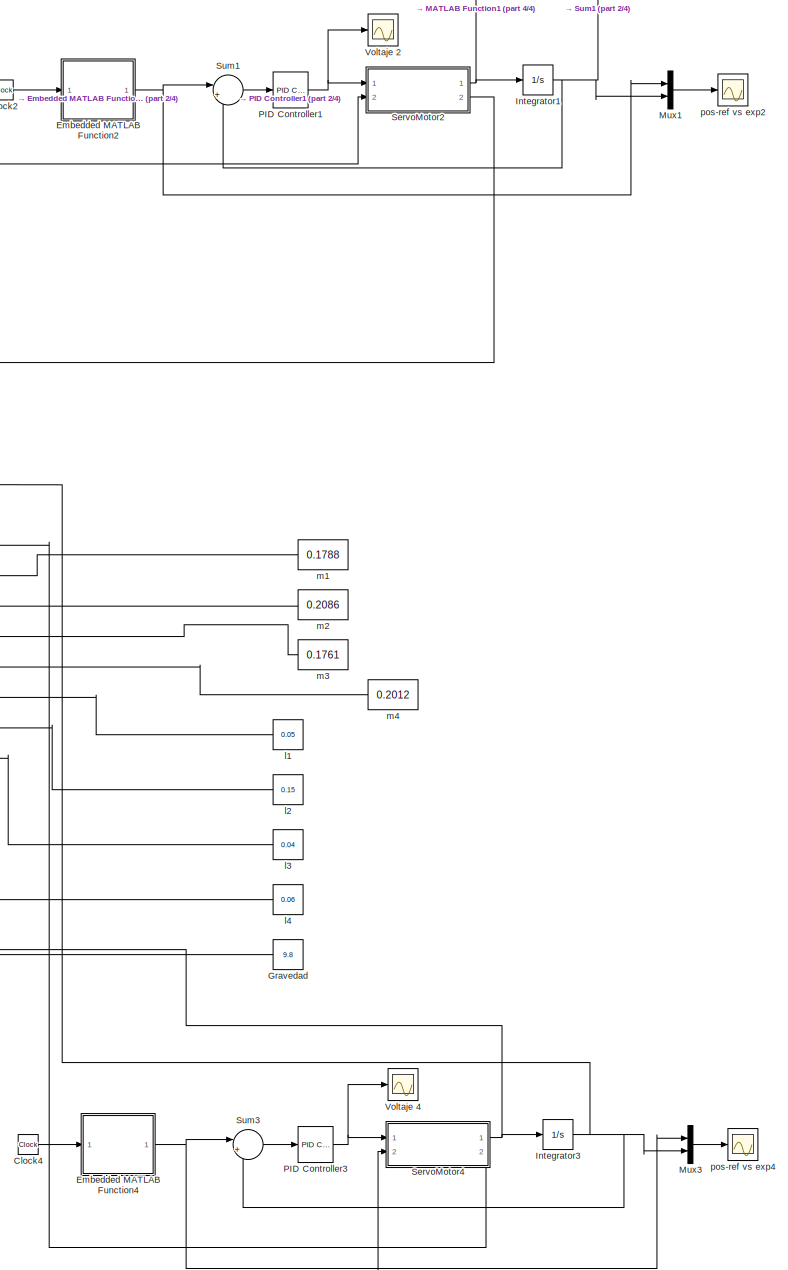
[diagram: root canvas - part 1/4, right side, full height]
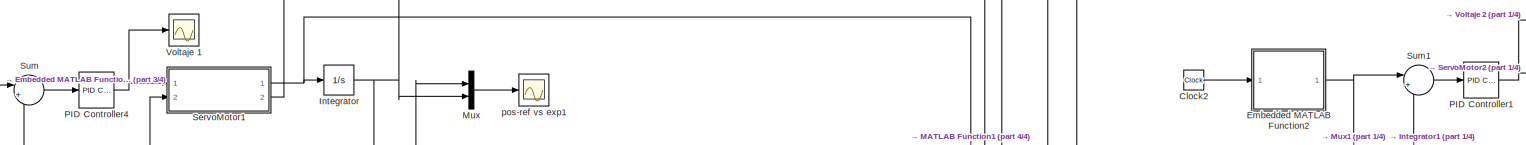
[diagram: root canvas - part 2/4, top center region]
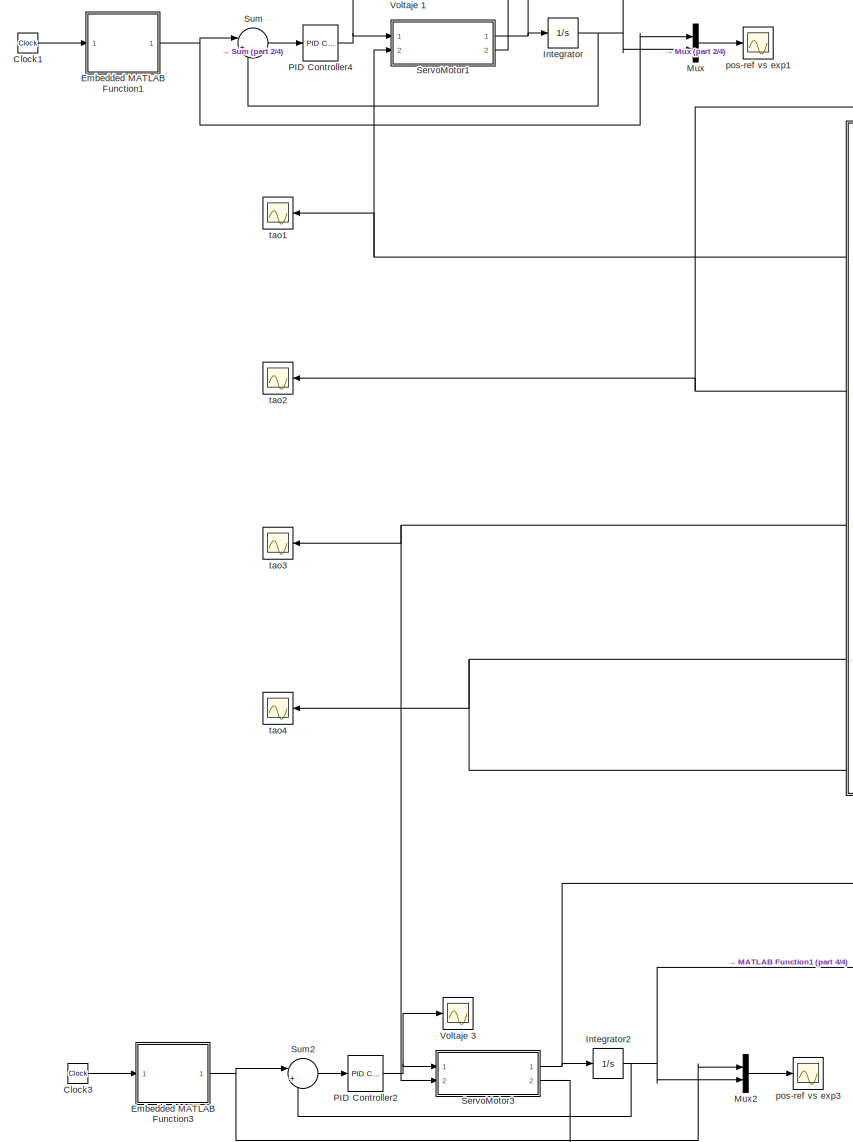
[diagram: root canvas - part 3/4, left side, full height]
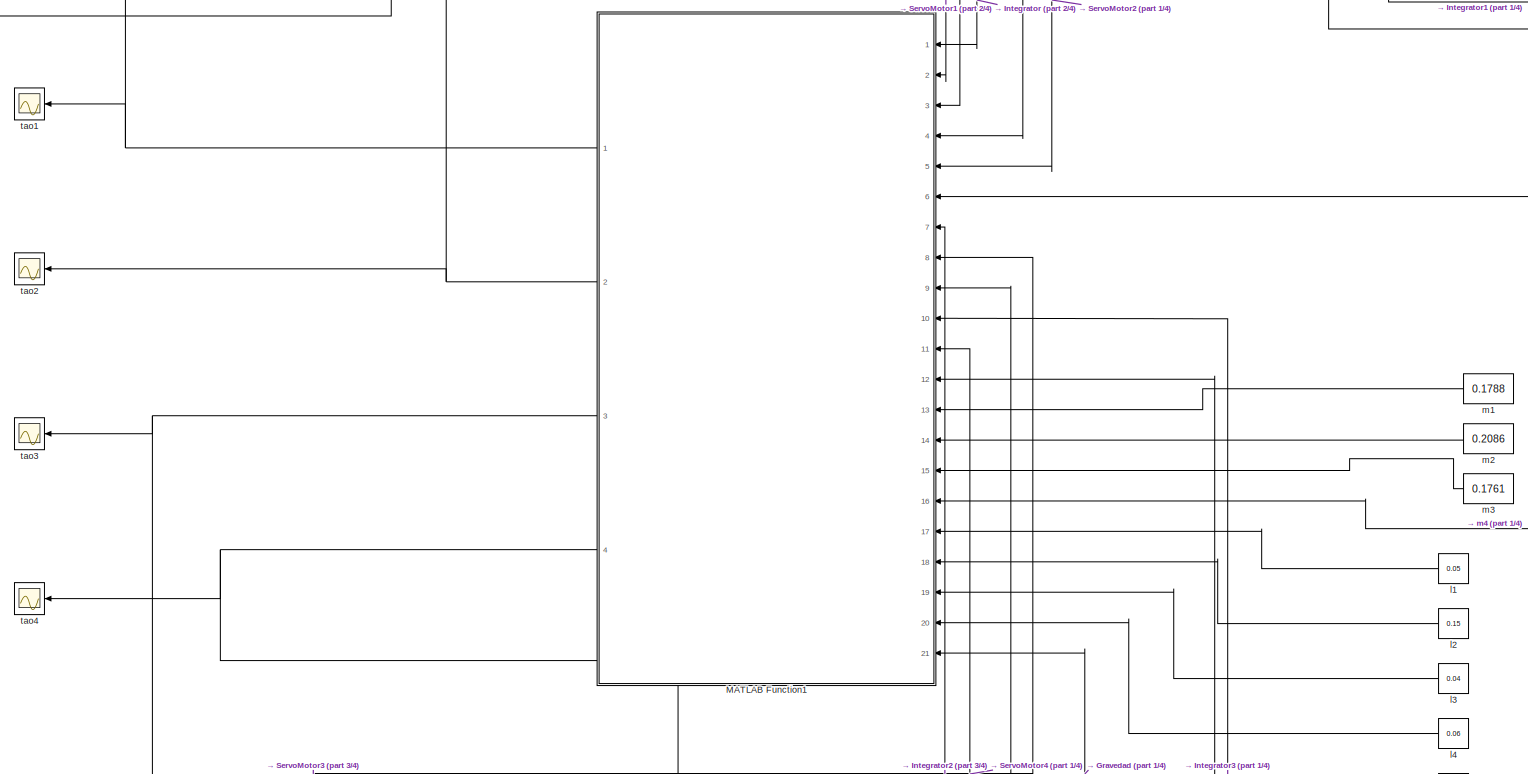
[diagram: root canvas - part 4/4, central region]
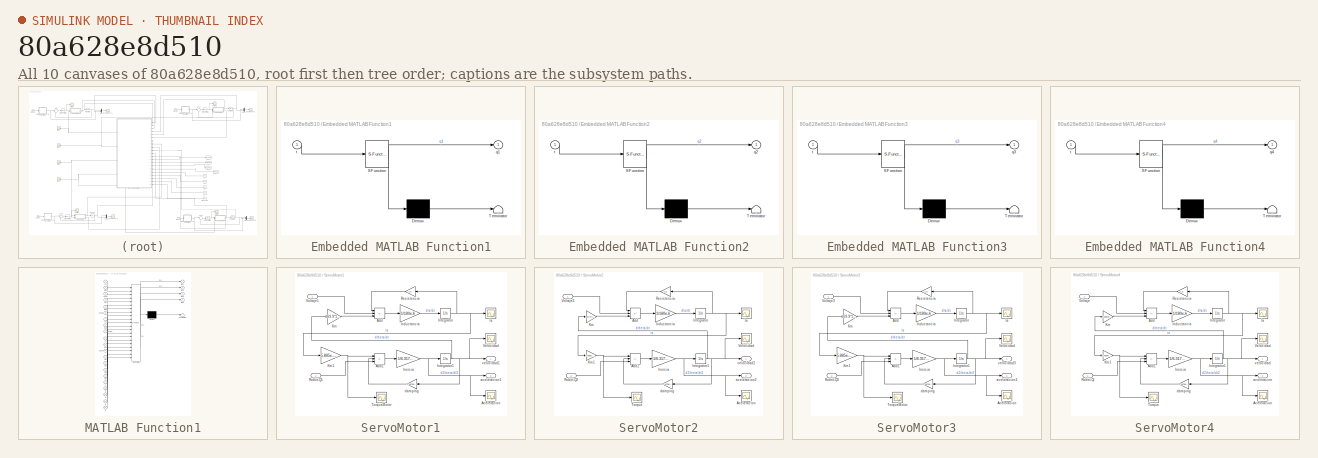
[diagram: thumbnail index - all 10 canvases of the model, root first then tree order]
MODEL slx_80a628e8d510
KIND model
CONFIG AbsTol = auto
CONFIG EnableMultiTasking = off
CONFIG FixedStep = auto
CONFIG MaxStep = auto
CONFIG MinStep = auto
CONFIG RelTol = 1e-3
CONFIG SampleTimeConstraint = Unconstrained
CONFIG SolverName = VariableStepAuto
CONFIG StartTime = 0.0
CONFIG StopTime = 5
BLOCK [Clock] Clock1
  Decimation = 1000
BLOCK [Clock] Clock2
  Decimation = 1000
BLOCK [Clock] Clock3
  Decimation = 1000
BLOCK [Clock] Clock4
  Decimation = 1000
BLOCK [SubSystem] Embedded MATLAB Function1
  ErrorFcn = Stateflow.Translate.translate
  PermitHierarchicalResolution = ExplicitOnly
  Ports = [1, 1]
  RequestExecContextInheritance = off
  SFBlockType = MATLAB Function
  TreatAsAtomicUnit = on
BLOCK [Demux] Embedded MATLAB Function1/ Demux 
  Outputs = 1
  Ports = [1, 1]
BLOCK [S-Function] Embedded MATLAB Function1/ SFunction 
  EnableBusSupport = on
  FunctionName = sf_sfun
  PortCounts = [1 2]
  Ports = [1, 2]
  SFcnIsStateOwnerBlock = off
  SFunctionDeploymentMode = off
  Tag = Stateflow S-Function 4
BLOCK [Terminator] Embedded MATLAB Function1/ Terminator 
BLOCK [Outport] Embedded MATLAB Function1/q1
  VectorParamsAs1DForOutWhenUnconnected = off
BLOCK [Inport] Embedded MATLAB Function1/t
BLOCK [SubSystem] Embedded MATLAB Function2
  ErrorFcn = Stateflow.Translate.translate
  PermitHierarchicalResolution = ExplicitOnly
  Ports = [1, 1]
  RequestExecContextInheritance = off
  SFBlockType = MATLAB Function
  TreatAsAtomicUnit = on
BLOCK [Demux] Embedded MATLAB Function2/ Demux 
  Outputs = 1
  Ports = [1, 1]
BLOCK [S-Function] Embedded MATLAB Function2/ SFunction 
  EnableBusSupport = on
  FunctionName = sf_sfun
  PortCounts = [1 2]
  Ports = [1, 2]
  SFcnIsStateOwnerBlock = off
  SFunctionDeploymentMode = off
  Tag = Stateflow S-Function 5
BLOCK [Terminator] Embedded MATLAB Function2/ Terminator 
BLOCK [Outport] Embedded MATLAB Function2/q2
  VectorParamsAs1DForOutWhenUnconnected = off
BLOCK [Inport] Embedded MATLAB Function2/t
BLOCK [SubSystem] Embedded MATLAB Function3
  ErrorFcn = Stateflow.Translate.translate
  PermitHierarchicalResolution = ExplicitOnly
  Ports = [1, 1]
  RequestExecContextInheritance = off
  SFBlockType = MATLAB Function
  TreatAsAtomicUnit = on
BLOCK [Demux] Embedded MATLAB Function3/ Demux 
  Outputs = 1
  Ports = [1, 1]
BLOCK [S-Function] Embedded MATLAB Function3/ SFunction 
  EnableBusSupport = on
  FunctionName = sf_sfun
  PortCounts = [1 2]
  Ports = [1, 2]
  SFcnIsStateOwnerBlock = off
  SFunctionDeploymentMode = off
  Tag = Stateflow S-Function 7
BLOCK [Terminator] Embedded MATLAB Function3/ Terminator 
BLOCK [Outport] Embedded MATLAB Function3/q3
  VectorParamsAs1DForOutWhenUnconnected = off
BLOCK [Inport] Embedded MATLAB Function3/t
BLOCK [SubSystem] Embedded MATLAB Function4
  ErrorFcn = Stateflow.Translate.translate
  PermitHierarchicalResolution = ExplicitOnly
  Ports = [1, 1]
  RequestExecContextInheritance = off
  SFBlockType = MATLAB Function
  TreatAsAtomicUnit = on
BLOCK [Demux] Embedded MATLAB Function4/ Demux 
  Outputs = 1
  Ports = [1, 1]
BLOCK [S-Function] Embedded MATLAB Function4/ SFunction 
  EnableBusSupport = on
  FunctionName = sf_sfun
  PortCounts = [1 2]
  Ports = [1, 2]
  SFcnIsStateOwnerBlock = off
  SFunctionDeploymentMode = off
  Tag = Stateflow S-Function 1
BLOCK [Terminator] Embedded MATLAB Function4/ Terminator 
BLOCK [Outport] Embedded MATLAB Function4/q4
  VectorParamsAs1DForOutWhenUnconnected = off
BLOCK [Inport] Embedded MATLAB Function4/t
BLOCK [Constant] Gravedad
  NameLocation = top
  Value = 9.8
BLOCK [Integrator] Integrator
  Ports = [1, 1]
BLOCK [Integrator] Integrator1
  Ports = [1, 1]
BLOCK [Integrator] Integrator2
  Ports = [1, 1]
BLOCK [Integrator] Integrator3
  Ports = [1, 1]
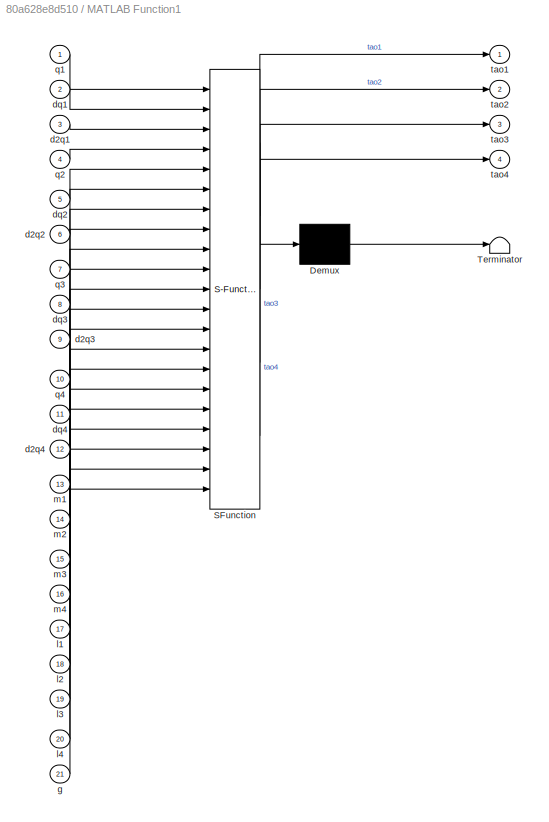
BLOCK [SubSystem] MATLAB Function1
  ErrorFcn = Stateflow.Translate.translate
  NameLocation = top
  PermitHierarchicalResolution = ExplicitOnly
  Ports = [21, 4]
  RequestExecContextInheritance = off
  SFBlockType = MATLAB Function
  TreatAsAtomicUnit = on
BLOCK [Demux] MATLAB Function1/ Demux 
  Outputs = 1
  Ports = [1, 1]
BLOCK [S-Function] MATLAB Function1/ SFunction 
  EnableBusSupport = on
  FunctionName = sf_sfun
  PortCounts = [21 5]
  Ports = [21, 5]
  SFcnIsStateOwnerBlock = off
  SFunctionDeploymentMode = off
  Tag = Stateflow S-Function 6
BLOCK [Terminator] MATLAB Function1/ Terminator 
BLOCK [Inport] MATLAB Function1/d2q1
  Port = 3
BLOCK [Inport] MATLAB Function1/d2q2
  Port = 6
BLOCK [Inport] MATLAB Function1/d2q3
  Port = 9
BLOCK [Inport] MATLAB Function1/d2q4
  Port = 12
BLOCK [Inport] MATLAB Function1/dq1
  Port = 2
BLOCK [Inport] MATLAB Function1/dq2
  Port = 5
BLOCK [Inport] MATLAB Function1/dq3
  Port = 8
BLOCK [Inport] MATLAB Function1/dq4
  Port = 11
BLOCK [Inport] MATLAB Function1/g
  Port = 21
BLOCK [Inport] MATLAB Function1/l1
  Port = 17
BLOCK [Inport] MATLAB Function1/l2
  Port = 18
BLOCK [Inport] MATLAB Function1/l3
  Port = 19
BLOCK [Inport] MATLAB Function1/l4
  Port = 20
BLOCK [Inport] MATLAB Function1/m1
  Port = 13
BLOCK [Inport] MATLAB Function1/m2
  Port = 14
BLOCK [Inport] MATLAB Function1/m3
  Port = 15
BLOCK [Inport] MATLAB Function1/m4
  Port = 16
BLOCK [Inport] MATLAB Function1/q1
BLOCK [Inport] MATLAB Function1/q2
  Port = 4
BLOCK [Inport] MATLAB Function1/q3
  Port = 7
BLOCK [Inport] MATLAB Function1/q4
  Port = 10
BLOCK [Outport] MATLAB Function1/tao1
BLOCK [Outport] MATLAB Function1/tao2
  Port = 2
BLOCK [Outport] MATLAB Function1/tao3
  Port = 3
BLOCK [Outport] MATLAB Function1/tao4
  Port = 4
BLOCK [Mux] Mux
  DisplayOption = bar
  Inputs = 2
  Ports = [2, 1]
BLOCK [Mux] Mux1
  DisplayOption = bar
  Inputs = 2
  Ports = [2, 1]
BLOCK [Mux] Mux2
  DisplayOption = bar
  Inputs = 2
  Ports = [2, 1]
BLOCK [Mux] Mux3
  DisplayOption = bar
  Inputs = 2
  Ports = [2, 1]
BLOCK [Reference] PID Controller1  REF=slpidlib/PID Controller
  Ports = [1, 1]
  SourceBlock = slpidlib/PID Controller
  SourceProductBaseCode = SL
  SourceType = PID 1dof
BLOCK [Reference] PID Controller2  REF=slpidlib/PID Controller
  Ports = [1, 1]
  SourceBlock = slpidlib/PID Controller
  SourceProductBaseCode = SL
  SourceType = PID 1dof
BLOCK [Reference] PID Controller3  REF=slpidlib/PID Controller
  Ports = [1, 1]
  SourceBlock = slpidlib/PID Controller
  SourceProductBaseCode = SL
  SourceType = PID 1dof
BLOCK [Reference] PID Controller4  REF=slpidlib/PID Controller
  Ports = [1, 1]
  SourceBlock = slpidlib/PID Controller
  SourceProductBaseCode = SL
  SourceType = PID 1dof
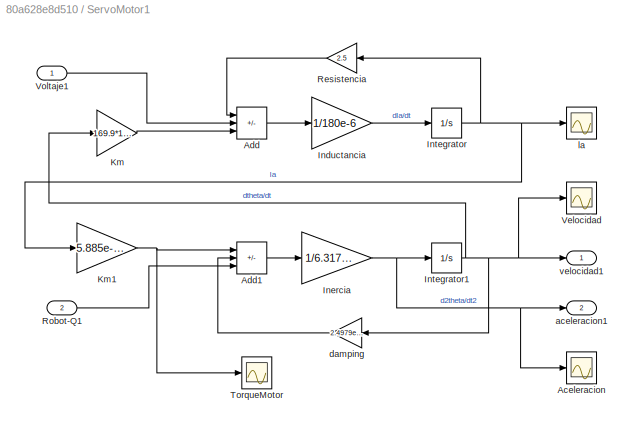
BLOCK [SubSystem] ServoMotor1
  Ports = [2, 2]
  RequestExecContextInheritance = off
BLOCK [Scope] ServoMotor1/Aceleracion
  Floating = off
  NumInputPorts = 1
  Ports = [1]
  ScopeSpecificationString = Simulink.scopes.TimeScopeBlockCfg('CurrentConfiguration', extmgr.ConfigurationSet(extmgr.Configuration('Core','General UI',true),extmgr.Configuration('Core','Source UI',true),extmgr.Configuration('Sources','WiredSimulink',true,'DataLoggingVariableName','ScopeData2'),extmgr.Configuration('Visuals','Time Domain',true,'SerializedDisplays',{struct('MinYLimReal','-808733.54803','MaxYLimReal','793738.99...<+1408ch>
BLOCK [Sum] ServoMotor1/Add
  IconShape = rectangular
  Inputs = -+-
  Ports = [3, 1]
BLOCK [Sum] ServoMotor1/Add1
  IconShape = rectangular
  Inputs = +--
  Ports = [3, 1]
BLOCK [Gain] ServoMotor1/Inductancia
  Gain = 1/180e-6
BLOCK [Gain] ServoMotor1/Inercia
  Gain = 1/6.3173e-7
BLOCK [Integrator] ServoMotor1/Integrator
  Ports = [1, 1]
BLOCK [Integrator] ServoMotor1/Integrator1
  Ports = [1, 1]
BLOCK [Gain] ServoMotor1/Km
  Gain = 169.9*1/275.75
BLOCK [Gain] ServoMotor1/Km1
  Gain = 5.885e-3*275.75
BLOCK [Gain] ServoMotor1/Resistencia
  Gain = 2.5
  NameLocation = top
BLOCK [Inport] ServoMotor1/Robot-Q1
  Port = 2
BLOCK [Scope] ServoMotor1/TorqueMotor
  Floating = off
  NumInputPorts = 1
  Ports = [1]
  ScopeSpecificationString = Simulink.scopes.TimeScopeBlockCfg('CurrentConfiguration', extmgr.ConfigurationSet(extmgr.Configuration('Core','General UI',true),extmgr.Configuration('Core','Source UI',true),extmgr.Configuration('Sources','WiredSimulink',true,'DataLoggingVariableName','ScopeData3'),extmgr.Configuration('Visuals','Time Domain',true,'SerializedDisplays',{struct('MinYLimReal','-4320.40867','MaxYLimReal','3987.98017'...<+1409ch>
BLOCK [Scope] ServoMotor1/Velocidad
  Floating = off
  NumInputPorts = 1
  Ports = [1]
  ScopeSpecificationString = Simulink.scopes.TimeScopeBlockCfg('CurrentConfiguration', extmgr.ConfigurationSet(extmgr.Configuration('Core','General UI',true),extmgr.Configuration('Core','Source UI',true),extmgr.Configuration('Sources','WiredSimulink',true,'DataLoggingVariableName','ScopeData1'),extmgr.Configuration('Visuals','Time Domain',true,'SerializedDisplays',{struct('MinYLimReal','-147.84307','MaxYLimReal','200.66035','...<+1382ch>
BLOCK [Inport] ServoMotor1/Voltaje1
BLOCK [Outport] ServoMotor1/aceleracion1
  Port = 2
BLOCK [Gain] ServoMotor1/damping
  Gain = 2.4979e-7
  NameLocation = top
BLOCK [Scope] ServoMotor1/la
  Floating = off
  NumInputPorts = 1
  Ports = [1]
  ScopeSpecificationString = Simulink.scopes.TimeScopeBlockCfg('CurrentConfiguration', extmgr.ConfigurationSet(extmgr.Configuration('Core','General UI',true),extmgr.Configuration('Core','Source UI',true),extmgr.Configuration('Sources','WiredSimulink',true),extmgr.Configuration('Visuals','Time Domain',true,'SerializedDisplays',{struct('MinYLimReal','-2662.33585','MaxYLimReal','2457.48571','YLabelReal','','MinYLimMag','  0.0000...<+1402ch>
BLOCK [Outport] ServoMotor1/velocidad1
BLOCK [SubSystem] ServoMotor2
  Ports = [2, 2]
  RequestExecContextInheritance = off
BLOCK [Scope] ServoMotor2/Aceleracion
  Floating = off
  NumInputPorts = 1
  Ports = [1]
  ScopeSpecificationString = Simulink.scopes.TimeScopeBlockCfg('CurrentConfiguration', extmgr.ConfigurationSet(extmgr.Configuration('Core','General UI',true),extmgr.Configuration('Core','Source UI',true),extmgr.Configuration('Sources','WiredSimulink',true,'DataLoggingVariableName','ScopeData2'),extmgr.Configuration('Visuals','Time Domain',true),extmgr.Configuration('Tools','Plot Navigation',true),extmgr.Configuration('Tools',...<+58ch>
BLOCK [Sum] ServoMotor2/Add
  IconShape = rectangular
  Inputs = -+-
  Ports = [3, 1]
BLOCK [Sum] ServoMotor2/Add1
  IconShape = rectangular
  Inputs = +--
  Ports = [3, 1]
BLOCK [Gain] ServoMotor2/Inductancia
  Gain = 1/180e-6
BLOCK [Gain] ServoMotor2/Inercia
  Gain = 1/6.3173e-7
BLOCK [Integrator] ServoMotor2/Integrator
  Ports = [1, 1]
BLOCK [Integrator] ServoMotor2/Integrator1
  Ports = [1, 1]
BLOCK [Gain] ServoMotor2/Km
  Gain = 169.9*1/275.75
BLOCK [Gain] ServoMotor2/Km1
  Gain = 5.885e-3*275.75
BLOCK [Gain] ServoMotor2/Resistencia
  Gain = 2.5
  NameLocation = top
BLOCK [Inport] ServoMotor2/Robot-Q2
  Port = 2
BLOCK [Scope] ServoMotor2/Torque
  Floating = off
  NumInputPorts = 1
  Ports = [1]
  ScopeSpecificationString = Simulink.scopes.TimeScopeBlockCfg('CurrentConfiguration', extmgr.ConfigurationSet(extmgr.Configuration('Core','General UI',true),extmgr.Configuration('Core','Source UI',true),extmgr.Configuration('Sources','WiredSimulink',true,'DataLoggingVariableName','ScopeData3'),extmgr.Configuration('Visuals','Time Domain',true),extmgr.Configuration('Tools','Plot Navigation',true),extmgr.Configuration('Tools',...<+58ch>
BLOCK [Scope] ServoMotor2/Velocidad
  Floating = off
  NumInputPorts = 1
  Ports = [1]
  ScopeSpecificationString = Simulink.scopes.TimeScopeBlockCfg('CurrentConfiguration', extmgr.ConfigurationSet(extmgr.Configuration('Core','General UI',true),extmgr.Configuration('Core','Source UI',true),extmgr.Configuration('Sources','WiredSimulink',true,'DataLoggingVariableName','ScopeData1'),extmgr.Configuration('Visuals','Time Domain',true),extmgr.Configuration('Tools','Plot Navigation',true),extmgr.Configuration('Tools',...<+58ch>
BLOCK [Inport] ServoMotor2/Voltaje2
BLOCK [Outport] ServoMotor2/aceleracion2
  Port = 2
BLOCK [Gain] ServoMotor2/damping
  Gain = 2.4979e-7
  NameLocation = top
BLOCK [Scope] ServoMotor2/la
  Floating = off
  NumInputPorts = 1
  Ports = [1]
  ScopeSpecificationString = Simulink.scopes.TimeScopeBlockCfg('CurrentConfiguration', extmgr.ConfigurationSet(extmgr.Configuration('Core','General UI',true),extmgr.Configuration('Core','Source UI',true),extmgr.Configuration('Sources','WiredSimulink',true),extmgr.Configuration('Visuals','Time Domain',true),extmgr.Configuration('Tools','Plot Navigation',true),extmgr.Configuration('Tools','Measurements',true,'Version','2021b'))...<+19ch>
BLOCK [Outport] ServoMotor2/velocidad2
BLOCK [SubSystem] ServoMotor3
  Ports = [2, 2]
  RequestExecContextInheritance = off
BLOCK [Scope] ServoMotor3/Aceleracion
  Floating = off
  NumInputPorts = 1
  Ports = [1]
  ScopeSpecificationString = Simulink.scopes.TimeScopeBlockCfg('CurrentConfiguration', extmgr.ConfigurationSet(extmgr.Configuration('Core','General UI',true),extmgr.Configuration('Core','Source UI',true),extmgr.Configuration('Sources','WiredSimulink',true,'DataLoggingVariableName','ScopeData2'),extmgr.Configuration('Visuals','Time Domain',true,'SerializedDisplays',{struct('MinYLimReal','-280347029.40672','MaxYLimReal','363268...<+1432ch>
BLOCK [Sum] ServoMotor3/Add
  IconShape = rectangular
  Inputs = -+-
  Ports = [3, 1]
BLOCK [Sum] ServoMotor3/Add1
  IconShape = rectangular
  Inputs = +--
  Ports = [3, 1]
BLOCK [Gain] ServoMotor3/Inductancia
  Gain = 1/180e-6
BLOCK [Gain] ServoMotor3/Inercia
  Gain = 1/6.3173e-7
BLOCK [Integrator] ServoMotor3/Integrator
  Ports = [1, 1]
BLOCK [Integrator] ServoMotor3/Integrator1
  Ports = [1, 1]
BLOCK [Gain] ServoMotor3/Km
  Gain = 169.9*1/275.75
BLOCK [Gain] ServoMotor3/Km1
  Gain = 5.885e-3*275.75
BLOCK [Gain] ServoMotor3/Resistencia
  Gain = 2.5
  NameLocation = top
BLOCK [Inport] ServoMotor3/Robot-Q3
  Port = 2
BLOCK [Scope] ServoMotor3/TorqueMotor
  Floating = off
  NumInputPorts = 1
  Ports = [1]
  ScopeSpecificationString = Simulink.scopes.TimeScopeBlockCfg('CurrentConfiguration', extmgr.ConfigurationSet(extmgr.Configuration('Core','General UI',true),extmgr.Configuration('Core','Source UI',true),extmgr.Configuration('Sources','WiredSimulink',true,'DataLoggingVariableName','ScopeData3'),extmgr.Configuration('Visuals','Time Domain',true,'SerializedDisplays',{struct('MinYLimReal','-34854.86099','MaxYLimReal','70354.6655...<+1417ch>
BLOCK [Scope] ServoMotor3/Velocidad
  Floating = off
  NumInputPorts = 1
  Ports = [1]
  ScopeSpecificationString = Simulink.scopes.TimeScopeBlockCfg('CurrentConfiguration', extmgr.ConfigurationSet(extmgr.Configuration('Core','General UI',true),extmgr.Configuration('Core','Source UI',true),extmgr.Configuration('Sources','WiredSimulink',true,'DataLoggingVariableName','ScopeData1'),extmgr.Configuration('Visuals','Time Domain',true,'SerializedDisplays',{struct('MinYLimReal','-8320.52522','MaxYLimReal','6938.8941',...<+1388ch>
BLOCK [Inport] ServoMotor3/Voltaje3
BLOCK [Outport] ServoMotor3/aceleracion3
  Port = 2
BLOCK [Gain] ServoMotor3/damping
  Gain = 2.4979e-7
  NameLocation = top
BLOCK [Scope] ServoMotor3/la
  Floating = off
  NumInputPorts = 1
  Ports = [1]
  ScopeSpecificationString = Simulink.scopes.TimeScopeBlockCfg('CurrentConfiguration', extmgr.ConfigurationSet(extmgr.Configuration('Core','General UI',true),extmgr.Configuration('Core','Source UI',true),extmgr.Configuration('Sources','WiredSimulink',true),extmgr.Configuration('Visuals','Time Domain',true,'SerializedDisplays',{struct('MinYLimReal','-21478.37233','MaxYLimReal','43354.17381','YLabelReal','','MinYLimMag','   0.0...<+1410ch>
BLOCK [Outport] ServoMotor3/velocidad3
BLOCK [SubSystem] ServoMotor4
  Ports = [2, 2]
  RequestExecContextInheritance = off
BLOCK [Scope] ServoMotor4/Aceleracion
  Floating = off
  NumInputPorts = 1
  Ports = [1]
  ScopeSpecificationString = Simulink.scopes.TimeScopeBlockCfg('CurrentConfiguration', extmgr.ConfigurationSet(extmgr.Configuration('Core','General UI',true),extmgr.Configuration('Core','Source UI',true),extmgr.Configuration('Sources','WiredSimulink',true,'DataLoggingVariableName','ScopeData9'),extmgr.Configuration('Visuals','Time Domain',true),extmgr.Configuration('Tools','Plot Navigation',true),extmgr.Configuration('Tools',...<+58ch>
BLOCK [Sum] ServoMotor4/Add
  IconShape = rectangular
  Inputs = -+-
  Ports = [3, 1]
BLOCK [Sum] ServoMotor4/Add1
  IconShape = rectangular
  Inputs = +--
  Ports = [3, 1]
BLOCK [Gain] ServoMotor4/Inductancia
  Gain = 1/180e-6
BLOCK [Gain] ServoMotor4/Inercia
  Gain = 1/6.3173e-7
BLOCK [Integrator] ServoMotor4/Integrator
  Ports = [1, 1]
BLOCK [Integrator] ServoMotor4/Integrator1
  Ports = [1, 1]
BLOCK [Gain] ServoMotor4/Km
  Gain = 5.8857e-3
BLOCK [Gain] ServoMotor4/Km1
  Gain = 5.885e-3*275.75
BLOCK [Gain] ServoMotor4/Resistencia
  Gain = 2.5
  NameLocation = top
BLOCK [Inport] ServoMotor4/Robot-Qi
  Port = 2
BLOCK [Scope] ServoMotor4/Torque
  Floating = off
  NumInputPorts = 1
  Ports = [1]
  ScopeSpecificationString = Simulink.scopes.TimeScopeBlockCfg('CurrentConfiguration', extmgr.ConfigurationSet(extmgr.Configuration('Core','General UI',true),extmgr.Configuration('Core','Source UI',true),extmgr.Configuration('Sources','WiredSimulink',true,'DataLoggingVariableName','ScopeData10'),extmgr.Configuration('Visuals','Time Domain',true),extmgr.Configuration('Tools','Plot Navigation',true),extmgr.Configuration('Tools'...<+59ch>
BLOCK [Scope] ServoMotor4/Velocidad
  Floating = off
  NumInputPorts = 1
  Ports = [1]
  ScopeSpecificationString = Simulink.scopes.TimeScopeBlockCfg('CurrentConfiguration', extmgr.ConfigurationSet(extmgr.Configuration('Core','General UI',true),extmgr.Configuration('Core','Source UI',true),extmgr.Configuration('Sources','WiredSimulink',true,'DataLoggingVariableName','ScopeData11'),extmgr.Configuration('Visuals','Time Domain',true),extmgr.Configuration('Tools','Plot Navigation',true),extmgr.Configuration('Tools'...<+59ch>
BLOCK [Inport] ServoMotor4/Voltaje
BLOCK [Outport] ServoMotor4/aceleracion
  Port = 2
BLOCK [Gain] ServoMotor4/damping
  Gain = 2.4979e-7
  NameLocation = top
BLOCK [Scope] ServoMotor4/la
  Floating = off
  NumInputPorts = 1
  Ports = [1]
  ScopeSpecificationString = Simulink.scopes.TimeScopeBlockCfg('CurrentConfiguration', extmgr.ConfigurationSet(extmgr.Configuration('Core','General UI',true),extmgr.Configuration('Core','Source UI',true),extmgr.Configuration('Sources','WiredSimulink',true,'DataLoggingVariableName','ScopeData12'),extmgr.Configuration('Visuals','Time Domain',true),extmgr.Configuration('Tools','Plot Navigation',true),extmgr.Configuration('Tools'...<+59ch>
BLOCK [Outport] ServoMotor4/velocidad
BLOCK [Sum] Sum
  Inputs = |+-
  Ports = [2, 1]
BLOCK [Sum] Sum1
  Inputs = |+-
  Ports = [2, 1]
BLOCK [Sum] Sum2
  Inputs = |+-
  Ports = [2, 1]
BLOCK [Sum] Sum3
  Inputs = |+-
  Ports = [2, 1]
BLOCK [Scope] Voltaje 1
  Floating = off
  NumInputPorts = 1
  Ports = [1]
  ScopeSpecificationString = Simulink.scopes.TimeScopeBlockCfg('CurrentConfiguration', extmgr.ConfigurationSet(extmgr.Configuration('Core','General UI',true),extmgr.Configuration('Core','Source UI',true),extmgr.Configuration('Sources','WiredSimulink',true,'DataLoggingVariableName','ScopeData5'),extmgr.Configuration('Visuals','Time Domain',true,'SerializedDisplays',{struct('MinYLimReal','-6745.82177','MaxYLimReal','6167.35058'...<+1421ch>
BLOCK [Scope] Voltaje 2
  Floating = off
  NumInputPorts = 1
  Ports = [1]
  ScopeSpecificationString = Simulink.scopes.TimeScopeBlockCfg('CurrentConfiguration', extmgr.ConfigurationSet(extmgr.Configuration('Core','General UI',true),extmgr.Configuration('Core','Source UI',true),extmgr.Configuration('Sources','WiredSimulink',true,'DataLoggingVariableName','ScopeData7'),extmgr.Configuration('Visuals','Time Domain',true,'SerializedDisplays',{struct('MinYLimReal','-11.90952','MaxYLimReal','2.75582','YLa...<+1403ch>
BLOCK [Scope] Voltaje 3
  Floating = off
  NumInputPorts = 1
  Ports = [1]
  ScopeSpecificationString = Simulink.scopes.TimeScopeBlockCfg('CurrentConfiguration', extmgr.ConfigurationSet(extmgr.Configuration('Core','General UI',true),extmgr.Configuration('Core','Source UI',true),extmgr.Configuration('Sources','WiredSimulink',true,'DataLoggingVariableName','ScopeData10'),extmgr.Configuration('Visuals','Time Domain',true,'SerializedDisplays',{struct('MinYLimReal','-2.56339','MaxYLimReal','3.56506','YLa...<+1400ch>
BLOCK [Scope] Voltaje 4
  Floating = off
  NumInputPorts = 1
  Ports = [1]
  ScopeSpecificationString = Simulink.scopes.TimeScopeBlockCfg('CurrentConfiguration', extmgr.ConfigurationSet(extmgr.Configuration('Core','General UI',true),extmgr.Configuration('Core','Source UI',true),extmgr.Configuration('Sources','WiredSimulink',true,'DataLoggingVariableName','ScopeData13'),extmgr.Configuration('Visuals','Time Domain',true,'SerializedDisplays',{struct('MinYLimReal','-1133.5741','MaxYLimReal','10204.96148...<+1424ch>
BLOCK [Constant] l1
  NameLocation = top
  Value = 0.05
BLOCK [Constant] l2
  NameLocation = top
  Value = 0.15
BLOCK [Constant] l3
  NameLocation = top
  Value = 0.04
BLOCK [Constant] l4
  NameLocation = top
  Value = 0.06
BLOCK [Constant] m1
  NameLocation = top
  Value = 0.1788
BLOCK [Constant] m2
  NameLocation = top
  Value = 0.2086
BLOCK [Constant] m3
  NameLocation = top
  Value = 0.1761
BLOCK [Constant] m4
  NameLocation = top
  Value = 0.2012
BLOCK [Scope] pos-ref vs exp1
  Floating = off
  NumInputPorts = 1
  Ports = [1]
  ScopeSpecificationString = Simulink.scopes.TimeScopeBlockCfg('CurrentConfiguration', extmgr.ConfigurationSet(extmgr.Configuration('Core','General UI',true,'FigureColor',[1 1 1]),extmgr.Configuration('Core','Source UI',true),extmgr.Configuration('Sources','WiredSimulink',true,'DataLoggingVariableName','ScopeData4'),extmgr.Configuration('Visuals','Time Domain',true,'SerializedDisplays',{struct('MinYLimReal','-3.53963','MaxYLi...<+1706ch>
BLOCK [Scope] pos-ref vs exp2
  Floating = off
  NumInputPorts = 1
  Ports = [1]
  ScopeSpecificationString = Simulink.scopes.TimeScopeBlockCfg('CurrentConfiguration', extmgr.ConfigurationSet(extmgr.Configuration('Core','General UI',true,'FigureColor',[1 1 1]),extmgr.Configuration('Core','Source UI',true),extmgr.Configuration('Sources','WiredSimulink',true,'DataLoggingVariableName','ScopeData4'),extmgr.Configuration('Visuals','Time Domain',true,'SerializedDisplays',{struct('MinYLimReal','-1.88083','MaxYLi...<+1706ch>
BLOCK [Scope] pos-ref vs exp3
  Floating = off
  NumInputPorts = 1
  Ports = [1]
  ScopeSpecificationString = Simulink.scopes.TimeScopeBlockCfg('CurrentConfiguration', extmgr.ConfigurationSet(extmgr.Configuration('Core','General UI',true,'FigureColor',[1 1 1]),extmgr.Configuration('Core','Source UI',true),extmgr.Configuration('Sources','WiredSimulink',true,'DataLoggingVariableName','ScopeData6'),extmgr.Configuration('Visuals','Time Domain',true,'SerializedDisplays',{struct('MinYLimReal','-1.09954','MaxYLi...<+1706ch>
BLOCK [Scope] pos-ref vs exp4
  Floating = off
  NumInputPorts = 1
  Ports = [1]
  ScopeSpecificationString = Simulink.scopes.TimeScopeBlockCfg('CurrentConfiguration', extmgr.ConfigurationSet(extmgr.Configuration('Core','General UI',true,'FigureColor',[1 1 1]),extmgr.Configuration('Core','Source UI',true),extmgr.Configuration('Sources','WiredSimulink',true,'DataLoggingVariableName','ScopeData7'),extmgr.Configuration('Visuals','Time Domain',true,'SerializedDisplays',{struct('MinYLimReal','-1.32961','MaxYLi...<+1706ch>
BLOCK [Scope] tao1
  Floating = off
  NameLocation = top
  NumInputPorts = 1
  Ports = [1]
  ScopeSpecificationString = Simulink.scopes.TimeScopeBlockCfg('CurrentConfiguration', extmgr.ConfigurationSet(extmgr.Configuration('Core','General UI',true,'FigureColor',[1 1 1]),extmgr.Configuration('Core','Source UI',true),extmgr.Configuration('Sources','WiredSimulink',true,'DataLoggingSaveFormat','StructureWithTime','DataLoggingLimitDataPoints',true,'DataLoggingDecimation','1','DataLoggingDecimateData',true,'DataLoggingVa...<+1913ch>  <repeated x4 — deduplicated; at blocks: tao1, tao2, tao3, tao4>
BLOCK [Scope] tao2
  Floating = off
  NameLocation = top
  NumInputPorts = 1
  Ports = [1]
BLOCK [Scope] tao3
  Floating = off
  NameLocation = top
  NumInputPorts = 1
  Ports = [1]
BLOCK [Scope] tao4
  Floating = off
  NameLocation = top
  NumInputPorts = 1
  Ports = [1]
LINE Clock1:1 -> Embedded MATLAB Function1:1
LINE Clock2:1 -> Embedded MATLAB Function2:1
LINE Clock3:1 -> Embedded MATLAB Function3:1
LINE Clock4:1 -> Embedded MATLAB Function4:1
NET Embedded MATLAB Function1:1 -> Mux:1, Sum:1
NET Embedded MATLAB Function2:1 -> Mux1:1, Sum1:1
NET Embedded MATLAB Function3:1 -> Mux2:1, Sum2:1
NET Embedded MATLAB Function4:1 -> Mux3:1, Sum3:1
LINE Gravedad:1 -> MATLAB Function1:21
NET Integrator1:1 -> MATLAB Function1:4, Mux1:2, Sum1:2
NET Integrator2:1 -> MATLAB Function1:7, Mux2:2, Sum2:2
NET Integrator3:1 -> MATLAB Function1:10, Mux3:2, Sum3:2
NET Integrator:1 -> MATLAB Function1:1, Mux:2, Sum:2
NET MATLAB Function1:1 -> ServoMotor1:2, tao1:1
NET MATLAB Function1:2 -> ServoMotor2:2, tao2:1
NET MATLAB Function1:3 -> ServoMotor3:2, tao3:1
NET MATLAB Function1:4 -> ServoMotor4:2, tao4:1
LINE Mux1:1 -> pos-ref vs exp2:1
LINE Mux2:1 -> pos-ref vs exp3:1
LINE Mux3:1 -> pos-ref vs exp4:1
LINE Mux:1 -> pos-ref vs exp1:1
NET PID Controller1:1 -> ServoMotor2:1, Voltaje 2:1
NET PID Controller2:1 -> ServoMotor3:1, Voltaje 3:1
NET PID Controller3:1 -> ServoMotor4:1, Voltaje 4:1
NET PID Controller4:1 -> ServoMotor1:1, Voltaje 1:1
LINE ServoMotor1/Add1:1 -> ServoMotor1/Inercia:1
LINE ServoMotor1/Add:1 -> ServoMotor1/Inductancia:1
LINE ServoMotor1/Inductancia:1 -> ServoMotor1/Integrator:1
NET ServoMotor1/Inercia:1 -> ServoMotor1/Aceleracion:1, ServoMotor1/Integrator1:1, ServoMotor1/aceleracion1:1
NET ServoMotor1/Integrator1:1 -> ServoMotor1/Km:1, ServoMotor1/Velocidad:1, ServoMotor1/damping:1, ServoMotor1/velocidad1:1
NET ServoMotor1/Integrator:1 -> ServoMotor1/Km1:1, ServoMotor1/Resistencia:1, ServoMotor1/la:1
NET ServoMotor1/Km1:1 -> ServoMotor1/Add1:1, ServoMotor1/TorqueMotor:1
LINE ServoMotor1/Km:1 -> ServoMotor1/Add:3
LINE ServoMotor1/Resistencia:1 -> ServoMotor1/Add:1
LINE ServoMotor1/Robot-Q1:1 -> ServoMotor1/Add1:3
LINE ServoMotor1/Voltaje1:1 -> ServoMotor1/Add:2
LINE ServoMotor1/damping:1 -> ServoMotor1/Add1:2
NET ServoMotor1:1 -> Integrator:1, MATLAB Function1:2
LINE ServoMotor1:2 -> MATLAB Function1:3
LINE ServoMotor2/Add1:1 -> ServoMotor2/Inercia:1
LINE ServoMotor2/Add:1 -> ServoMotor2/Inductancia:1
LINE ServoMotor2/Inductancia:1 -> ServoMotor2/Integrator:1
NET ServoMotor2/Inercia:1 -> ServoMotor2/Aceleracion:1, ServoMotor2/Integrator1:1, ServoMotor2/aceleracion2:1
NET ServoMotor2/Integrator1:1 -> ServoMotor2/Km:1, ServoMotor2/Velocidad:1, ServoMotor2/damping:1, ServoMotor2/velocidad2:1
NET ServoMotor2/Integrator:1 -> ServoMotor2/Km1:1, ServoMotor2/Resistencia:1, ServoMotor2/la:1
NET ServoMotor2/Km1:1 -> ServoMotor2/Add1:1, ServoMotor2/Torque:1
LINE ServoMotor2/Km:1 -> ServoMotor2/Add:3
LINE ServoMotor2/Resistencia:1 -> ServoMotor2/Add:1
LINE ServoMotor2/Robot-Q2:1 -> ServoMotor2/Add1:3
LINE ServoMotor2/Voltaje2:1 -> ServoMotor2/Add:2
LINE ServoMotor2/damping:1 -> ServoMotor2/Add1:2
NET ServoMotor2:1 -> Integrator1:1, MATLAB Function1:5
LINE ServoMotor2:2 -> MATLAB Function1:6
LINE ServoMotor3/Add1:1 -> ServoMotor3/Inercia:1
LINE ServoMotor3/Add:1 -> ServoMotor3/Inductancia:1
LINE ServoMotor3/Inductancia:1 -> ServoMotor3/Integrator:1
NET ServoMotor3/Inercia:1 -> ServoMotor3/Aceleracion:1, ServoMotor3/Integrator1:1, ServoMotor3/aceleracion3:1
NET ServoMotor3/Integrator1:1 -> ServoMotor3/Km:1, ServoMotor3/Velocidad:1, ServoMotor3/damping:1, ServoMotor3/velocidad3:1
NET ServoMotor3/Integrator:1 -> ServoMotor3/Km1:1, ServoMotor3/Resistencia:1, ServoMotor3/la:1
NET ServoMotor3/Km1:1 -> ServoMotor3/Add1:1, ServoMotor3/TorqueMotor:1
LINE ServoMotor3/Km:1 -> ServoMotor3/Add:3
LINE ServoMotor3/Resistencia:1 -> ServoMotor3/Add:1
LINE ServoMotor3/Robot-Q3:1 -> ServoMotor3/Add1:3
LINE ServoMotor3/Voltaje3:1 -> ServoMotor3/Add:2
LINE ServoMotor3/damping:1 -> ServoMotor3/Add1:2
NET ServoMotor3:1 -> Integrator2:1, MATLAB Function1:8
LINE ServoMotor3:2 -> MATLAB Function1:9
LINE ServoMotor4/Add1:1 -> ServoMotor4/Inercia:1
LINE ServoMotor4/Add:1 -> ServoMotor4/Inductancia:1
LINE ServoMotor4/Inductancia:1 -> ServoMotor4/Integrator:1
NET ServoMotor4/Inercia:1 -> ServoMotor4/Aceleracion:1, ServoMotor4/Integrator1:1, ServoMotor4/aceleracion:1
NET ServoMotor4/Integrator1:1 -> ServoMotor4/Km:1, ServoMotor4/Velocidad:1, ServoMotor4/damping:1, ServoMotor4/velocidad:1
NET ServoMotor4/Integrator:1 -> ServoMotor4/Km1:1, ServoMotor4/Resistencia:1, ServoMotor4/la:1
NET ServoMotor4/Km1:1 -> ServoMotor4/Add1:1, ServoMotor4/Torque:1
LINE ServoMotor4/Km:1 -> ServoMotor4/Add:3
LINE ServoMotor4/Resistencia:1 -> ServoMotor4/Add:1
LINE ServoMotor4/Robot-Qi:1 -> ServoMotor4/Add1:3
LINE ServoMotor4/Voltaje:1 -> ServoMotor4/Add:2
LINE ServoMotor4/damping:1 -> ServoMotor4/Add1:2
NET ServoMotor4:1 -> Integrator3:1, MATLAB Function1:11
LINE ServoMotor4:2 -> MATLAB Function1:12
LINE Sum1:1 -> PID Controller1:1
LINE Sum2:1 -> PID Controller2:1
LINE Sum3:1 -> PID Controller3:1
LINE Sum:1 -> PID Controller4:1
LINE l1:1 -> MATLAB Function1:17
LINE l2:1 -> MATLAB Function1:18
LINE l3:1 -> MATLAB Function1:19
LINE l4:1 -> MATLAB Function1:20
LINE m1:1 -> MATLAB Function1:13
LINE m2:1 -> MATLAB Function1:14
LINE m3:1 -> MATLAB Function1:15
LINE m4:1 -> MATLAB Function1:16
note: NET lines group one-source signal fan-out (src -> all destinations, sorted); 1:1 wires keep LINE
CHART Embedded
MATLAB Function3 states=1 transitions=1
  STATE_LABEL 'eML_blk_kernel()'
  STATE_LABEL 'SCRIPT:\nfunction q3 = posq3(t)\n% This block supports an embeddable subset of the MATLAB language.\n% See the help menu for details. \n\nif (t>=17)  % Si el t>=tmax, se repite una vez la rutina\n    t=t-17;\nend\n\nif(t<6) % Movimiento 1\n    t_inic = 0; % Tiempo en que inicia\n    tf = 4;     % Tiempo en que termina\n    y_ini = 1.570;\n    y_f = -0.785;\nelseif (t>=6 && t<12) % Movimiento 2\n    t_inic = 6;\n ...<+551ch>'
CHART Embedded
MATLAB Function4 states=1 transitions=1
  STATE_LABEL 'eML_blk_kernel()'
  STATE_LABEL 'SCRIPT:\nfunction q4 = posq4(t)\n% This block supports an embeddable subset of the MATLAB language.\n% See the help menu for details. \n\nif (t>=17)  % Si el t>=tmax, se repite una vez la rutina\n    t=t-17;\nend\n\nif(t<6) % Movimiento 1\n    t_inic = 0; % Tiempo en que inicia\n    tf = 4;     % Tiempo en que termina\n    y_ini = 1.570;\n    y_f = -0.785;\nelseif (t>=6 && t<12) % Movimiento 2\n    t_inic = 6;\n ...<+552ch>'
CHART Embedded
MATLAB Function1 states=1 transitions=1
  STATE_LABEL 'eML_blk_kernel()'
  STATE_LABEL 'SCRIPT:\nfunction q1 = posq1(t)\n% This block supports an embeddable subset of the MATLAB language.\n% See the help menu for details. \n\nif (t>=17)  % Si el t>=tmax, se repite otra vez la rutina\n    t=t-17;\nend\n\nif(t<6) % Movimiento 1\n    t_inic = 0; % Tiempo en que inicia\n    tf = 4;     % Tiempo en que termina\n    y_ini = 0;  % Posicion articular inicial (rad)\n    y_f = -3.14159;    % Posicion artic...<+724ch>'
CHART Embedded
MATLAB Function2 states=1 transitions=1
  STATE_LABEL 'eML_blk_kernel()'
  STATE_LABEL 'SCRIPT:\nfunction q2 = posq2(t)\n% This block supports an embeddable subset of the MATLAB language.\n% See the help menu for details. \n\nif (t>=17)  % Si el t>=tmax, se repite una vez la rutina\n    t=t-17;\nend\n\nif(t<6) % Movimiento 1\n    t_inic = 0; % Tiempo en que inicia\n    tf = 4;     % Tiempo en que termina\n    y_ini = 0.785;\n    y_f = -1.570;\nelseif (t>=6 && t<12) % Movimiento 2\n    t_inic = 6;\n ...<+554ch>'
CHART MATLAB Function1 states=1 transitions=1
  STATE_LABEL 'eML_blk_kernel()'
  STATE_LABEL 'SCRIPT:\nfunction [tao1, tao2, tao3, tao4] = EulerLagrange(q1, dq1, d2q1, q2, dq2, d2q2, q3, dq3, d2q3, q4, dq4, d2q4, m1, m2, m3, m4, l1, l2, l3, l4, g)\n%tao1= (40812255641599999*d2q1)/16777216 - 999120000*dq2^2*cos(q1)^2 + 382320000*dq3^2*cos(q1)^2 + 191160000*dq3^2*cos(q2)^2 - 120720000*dq4^2*cos(q2)^2 + 120720000*dq4^2*cos(q3)^2 + (52562346639359997*dq2^2*sin(2*q1))/67108864 - (4500767812266667...<+3608ch>'
CHART  states=0 transitions=0
CHART  states=0 transitions=0
CHART  states=0 transitions=0
CHART  states=0 transitions=0
CHART  states=0 transitions=0
